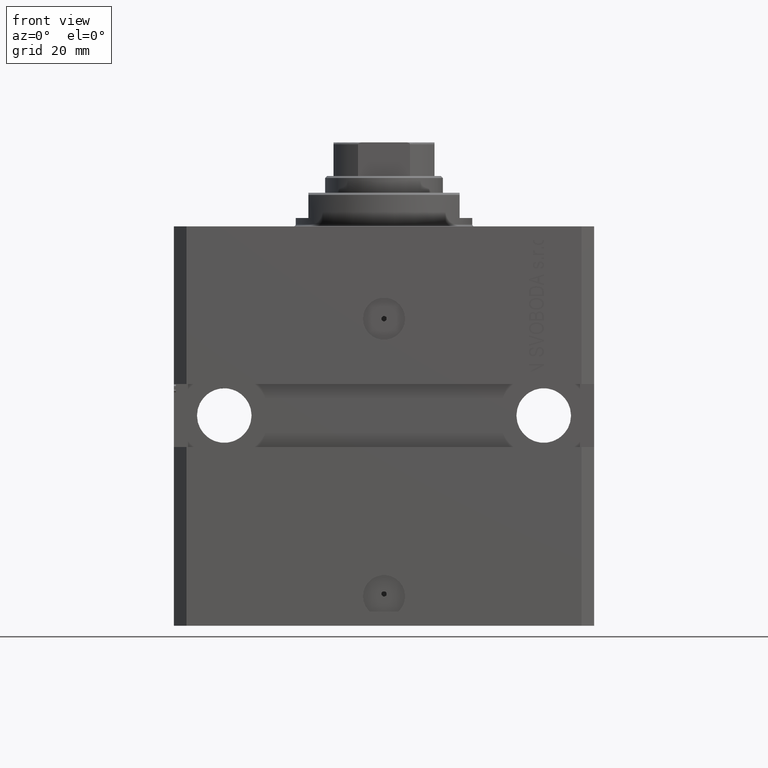
[diagram: clean part render]
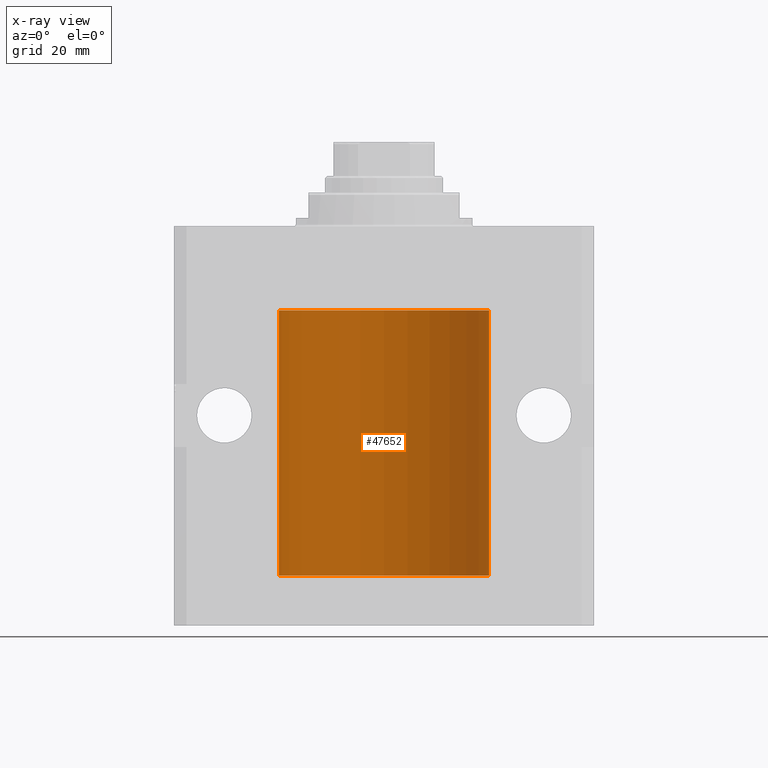
[diagram: x-ray — body ghosted, one internal face saturated and labeled with its STEP entity id]
A machine part, front view, then the same camera in x-ray: the body is ghosted and one INTERNAL B-rep face — a face not visible from any outside direction — is saturated and labeled: STEP entity #47652.
In plain terms, the highlighted cylindrical surface (partial cylindrical patch) has radius 25 mm, axis along (0, 0, 1).
Its self-contained STEP definition (entity closure, byte-faithful):
#1524 = DIRECTION ( 'NONE',  ( 1.000000000000000000, 0.000000000000000000, 0.000000000000000000 ) ) ;
#1706 = CARTESIAN_POINT ( 'NONE',  ( 0.000000000000000000, 0.000000000000000000, -83.09999999999999432 ) ) ;
#1786 = AXIS2_PLACEMENT_3D ( 'NONE', #1706, #16415, #27290 ) ;
#2389 = CARTESIAN_POINT ( 'NONE',  ( 25.00000000000000000, 0.000000000000000000, -83.09999999999999432 ) ) ;
#2502 = VERTEX_POINT ( 'NONE', #42240 ) ;
#2603 = CARTESIAN_POINT ( 'NONE',  ( 25.00000000000000000, 5.649527105131028858E-17, -25.62500000000000355 ) ) ;
#4727 = CARTESIAN_POINT ( 'NONE',  ( 24.99218627891524136, 0.6250000000003219647, -80.66310615504829684 ) ) ;
#4922 = VERTEX_POINT ( 'NONE', #41672 ) ;
#5221 = CARTESIAN_POINT ( 'NONE',  ( 24.99999999999999645, 0.1631302137355183646, -24.37500000000015277 ) ) ;
#5328 = VERTEX_POINT ( 'NONE', #26222 ) ;
#5475 = AXIS2_PLACEMENT_3D ( 'NONE', #46363, #8991, #1524 ) ;
#5698 = CARTESIAN_POINT ( 'NONE',  ( 24.99218627891505307, 0.6250000000082325258, -24.99999999999907629 ) ) ;
#5888 = VECTOR ( 'NONE', #6752, 1000.000000000000000 ) ;
#6544 = LINE ( 'NONE', #29223, #37140 ) ;
#6752 = DIRECTION ( 'NONE',  ( -0.000000000000000000, -0.000000000000000000, 1.000000000000000000 ) ) ;
#7108 = DIRECTION ( 'NONE',  ( 0.000000000000000000, 0.000000000000000000, 1.000000000000000000 ) ) ;
#7466 = EDGE_LOOP ( 'NONE', ( #31501, #17187, #27698, #42419, #34629, #42124, #22912, #26150, #10611, #18816 ) ) ;
#8051 = CARTESIAN_POINT ( 'NONE',  ( 25.00000000000008171, 3.486950283966777142E-13, -24.37499999999673150 ) ) ;
#8211 = CARTESIAN_POINT ( 'NONE',  ( 25.00000000000000000, 5.649527105131028858E-17, -25.62500000000000355 ) ) ;
#8337 = CARTESIAN_POINT ( 'NONE',  ( 25.00000000000000000, -2.424731304940744339E-15, -81.12500000000000000 ) ) ;
#8991 = DIRECTION ( 'NONE',  ( 0.000000000000000000, 0.000000000000000000, 1.000000000000000000 ) ) ;
#9300 = CARTESIAN_POINT ( 'NONE',  ( 24.99815573945175373, 0.3253059702579641499, -24.44140848432692081 ) ) ;
#10524 = VERTEX_POINT ( 'NONE', #8051 ) ;
#10611 = ORIENTED_EDGE ( 'NONE', *, *, #45346, .T. ) ;
#10650 = B_SPLINE_CURVE_WITH_KNOTS ( 'NONE', 3,
 ( #2603, #32508, #24786, #17312, #43103, #43581, #46241, #39727 ),
 .UNSPECIFIED., .F., .F.,
 ( 4, 2, 2, 4 ),
 ( 5.490258492927436848E-20, 0.0002443193446654762300, 0.0004886386893309524601, 0.0009772773786619120759 ),
 .UNSPECIFIED. ) ;
#10841 = LINE ( 'NONE', #39794, #5888 ) ;
#10983 = B_SPLINE_CURVE_WITH_KNOTS ( 'NONE', 3,
 ( #8337, #26922, #27806, #19440, #35046, #33914, #4727, #45000 ),
 .UNSPECIFIED., .F., .F.,
 ( 4, 2, 2, 4 ),
 ( 2.356374505740030593E-18, 0.0002443193446654823016, 0.0004886386893309623263, 0.0009772773786619218337 ),
 .UNSPECIFIED. ) ;
#11577 = B_SPLINE_CURVE_WITH_KNOTS ( 'NONE', 3,
 ( #16484, #37970, #41817, #38674, #23498, #45429 ),
 .UNSPECIFIED., .F., .F.,
 ( 4, 2, 4 ),
 ( 0.0009772773786619218337, 0.001465694572771605777, 0.001954111766881289937 ),
 .UNSPECIFIED. ) ;
#11657 = EDGE_CURVE ( 'NONE', #41870, #38704, #16386, .T. ) ;
#12673 = EDGE_CURVE ( 'NONE', #2502, #5328, #11577, .T. ) ;
#13473 = EDGE_CURVE ( 'NONE', #43385, #2502, #10983, .T. ) ;
#16126 = VERTEX_POINT ( 'NONE', #36348 ) ;
#16386 = CIRCLE ( 'NONE', #43342, 25.00000000000000000 ) ;
#16415 = DIRECTION ( 'NONE',  ( -0.000000000000000000, -0.000000000000000000, 1.000000000000000000 ) ) ;
#16484 = CARTESIAN_POINT ( 'NONE',  ( 24.99218627891505307, 0.6250000000082391871, -80.49999999999907629 ) ) ;
#16545 = CARTESIAN_POINT ( 'NONE',  ( 24.99403021173655404, 0.5586305782632567940, -24.67476111441487063 ) ) ;
#17090 = LINE ( 'NONE', #17336, #40486 ) ;
#17187 = ORIENTED_EDGE ( 'NONE', *, *, #39382, .F. ) ;
#17282 = EDGE_CURVE ( 'NONE', #16126, #38704, #17090, .T. ) ;
#17312 = CARTESIAN_POINT ( 'NONE',  ( 24.99812887437769859, 0.3150953964768999360, -25.54594609348567502 ) ) ;
#17336 = CARTESIAN_POINT ( 'NONE',  ( -25.00000000000000000, 3.061616997868383043E-15, -83.09999999999999432 ) ) ;
#18235 = VERTEX_POINT ( 'NONE', #8211 ) ;
#18816 = ORIENTED_EDGE ( 'NONE', *, *, #11657, .T. ) ;
#19440 = CARTESIAN_POINT ( 'NONE',  ( 24.99812887437770570, 0.3150953964769092064, -81.04594609348566792 ) ) ;
#19595 = EDGE_CURVE ( 'NONE', #4922, #43385, #10841, .T. ) ;
#20038 = CYLINDRICAL_SURFACE ( 'NONE', #1786, 25.00000000000000000 ) ;
#22912 = ORIENTED_EDGE ( 'NONE', *, *, #27119, .T. ) ;
#23498 = CARTESIAN_POINT ( 'NONE',  ( 24.99999999999999645, 0.1631302137355208348, -79.87500000000017053 ) ) ;
#23554 = CARTESIAN_POINT ( 'NONE',  ( 25.00000000000008171, 3.486950283966777142E-13, -24.37499999999673150 ) ) ;
#24561 = CARTESIAN_POINT ( 'NONE',  ( 25.00000000000000000, 0.000000000000000000, -20.00000000000000355 ) ) ;
#24786 = CARTESIAN_POINT ( 'NONE',  ( 24.99957883295564187, 0.1636780489658712090, -25.60872961334235498 ) ) ;
#24790 = VECTOR ( 'NONE', #32296, 1000.000000000000000 ) ;
#25008 = CARTESIAN_POINT ( 'NONE',  ( 24.99218627891505307, 0.6250000000082325258, -24.99999999999907629 ) ) ;
#26150 = ORIENTED_EDGE ( 'NONE', *, *, #29072, .T. ) ;
#26222 = CARTESIAN_POINT ( 'NONE',  ( 25.00000000000008171, 3.486950403907965962E-13, -79.87499999999673150 ) ) ;
#26276 = CIRCLE ( 'NONE', #5475, 25.00000000000000000 ) ;
#26922 = CARTESIAN_POINT ( 'NONE',  ( 25.00000000000000355, 0.08261259269783381709, -81.12500000000001421 ) ) ;
#27119 = EDGE_CURVE ( 'NONE', #18235, #44617, #10650, .T. ) ;
#27290 = DIRECTION ( 'NONE',  ( 1.000000000000000000, 0.000000000000000000, 0.000000000000000000 ) ) ;
#27698 = ORIENTED_EDGE ( 'NONE', *, *, #19595, .T. ) ;
#27806 = CARTESIAN_POINT ( 'NONE',  ( 24.99957883295564187, 0.1636780489658792026, -81.10872961334236209 ) ) ;
#29072 = EDGE_CURVE ( 'NONE', #44617, #10524, #32958, .T. ) ;
#29223 = CARTESIAN_POINT ( 'NONE',  ( 25.00000000000000000, 0.000000000000000000, -83.09999999999999432 ) ) ;
#30002 = DIRECTION ( 'NONE',  ( 1.000000000000000000, 0.000000000000000000, 0.000000000000000000 ) ) ;
#31501 = ORIENTED_EDGE ( 'NONE', *, *, #17282, .F. ) ;
#31606 = CARTESIAN_POINT ( 'NONE',  ( 25.00000000000000000, -2.424731304940744339E-15, -81.12500000000000000 ) ) ;
#31818 = DIRECTION ( 'NONE',  ( -0.000000000000000000, -0.000000000000000000, 1.000000000000000000 ) ) ;
#32296 = DIRECTION ( 'NONE',  ( -0.000000000000000000, -0.000000000000000000, 1.000000000000000000 ) ) ;
#32508 = CARTESIAN_POINT ( 'NONE',  ( 25.00000000000000355, 0.08261259269783348402, -25.62500000000000000 ) ) ;
#32958 = B_SPLINE_CURVE_WITH_KNOTS ( 'NONE', 3,
 ( #5698, #42342, #16545, #9300, #5221, #23554 ),
 .UNSPECIFIED., .F., .F.,
 ( 4, 2, 4 ),
 ( 0.0009772773786619120759, 0.001465694572771597754, 0.001954111766881283432 ),
 .UNSPECIFIED. ) ;
#33914 = CARTESIAN_POINT ( 'NONE',  ( 24.99405112861447265, 0.5574133879603476727, -80.82638777868982061 ) ) ;
#34451 = CARTESIAN_POINT ( 'NONE',  ( -25.00000000000000000, 3.061616997868383043E-15, -20.00000000000000355 ) ) ;
#34521 = FACE_OUTER_BOUND ( 'NONE', #7466, .T. ) ;
#34629 = ORIENTED_EDGE ( 'NONE', *, *, #12673, .T. ) ;
#35046 = CARTESIAN_POINT ( 'NONE',  ( 24.99711042419772511, 0.3844422150124162108, -80.99948233212519710 ) ) ;
#36348 = CARTESIAN_POINT ( 'NONE',  ( -25.00000000000000000, 3.061616997868383043E-15, -83.09999999999999432 ) ) ;
#36756 = CARTESIAN_POINT ( 'NONE',  ( 0.000000000000000000, 0.000000000000000000, -20.00000000000000355 ) ) ;
#37140 = VECTOR ( 'NONE', #39591, 1000.000000000000000 ) ;
#37970 = CARTESIAN_POINT ( 'NONE',  ( 24.99218627891526268, 0.6249999999996124211, -80.33696777940136258 ) ) ;
#38674 = CARTESIAN_POINT ( 'NONE',  ( 24.99815573945175373, 0.3253059702579679247, -79.94140848432689950 ) ) ;
#38704 = VERTEX_POINT ( 'NONE', #34451 ) ;
#39382 = EDGE_CURVE ( 'NONE', #4922, #16126, #26276, .T. ) ;
#39591 = DIRECTION ( 'NONE',  ( -0.000000000000000000, -0.000000000000000000, 1.000000000000000000 ) ) ;
#39727 = CARTESIAN_POINT ( 'NONE',  ( 24.99218627891505307, 0.6250000000082325258, -24.99999999999907629 ) ) ;
#39794 = CARTESIAN_POINT ( 'NONE',  ( 25.00000000000000000, 0.000000000000000000, -83.09999999999999432 ) ) ;
#40486 = VECTOR ( 'NONE', #31818, 1000.000000000000000 ) ;
#41672 = CARTESIAN_POINT ( 'NONE',  ( 25.00000000000000000, 0.000000000000000000, -83.09999999999999432 ) ) ;
#41817 = CARTESIAN_POINT ( 'NONE',  ( 24.99403021173655404, 0.5586305782632625672, -80.17476111441484932 ) ) ;
#41870 = VERTEX_POINT ( 'NONE', #24561 ) ;
#42124 = ORIENTED_EDGE ( 'NONE', *, *, #44186, .T. ) ;
#42240 = CARTESIAN_POINT ( 'NONE',  ( 24.99218627891505307, 0.6250000000082391871, -80.49999999999907629 ) ) ;
#42342 = CARTESIAN_POINT ( 'NONE',  ( 24.99218627891526268, 0.6249999999996038724, -24.83696777940135192 ) ) ;
#42419 = ORIENTED_EDGE ( 'NONE', *, *, #13473, .T. ) ;
#43103 = CARTESIAN_POINT ( 'NONE',  ( 24.99711042419772866, 0.3844422150124099380, -25.49948233212518645 ) ) ;
#43132 = LINE ( 'NONE', #2389, #24790 ) ;
#43342 = AXIS2_PLACEMENT_3D ( 'NONE', #36756, #7108, #30002 ) ;
#43385 = VERTEX_POINT ( 'NONE', #31606 ) ;
#43581 = CARTESIAN_POINT ( 'NONE',  ( 24.99405112861447265, 0.5574133879603401232, -25.32638777868982061 ) ) ;
#44186 = EDGE_CURVE ( 'NONE', #5328, #18235, #43132, .T. ) ;
#44617 = VERTEX_POINT ( 'NONE', #25008 ) ;
#45000 = CARTESIAN_POINT ( 'NONE',  ( 24.99218627891505307, 0.6250000000082391871, -80.49999999999907629 ) ) ;
#45346 = EDGE_CURVE ( 'NONE', #10524, #41870, #6544, .T. ) ;
#45429 = CARTESIAN_POINT ( 'NONE',  ( 25.00000000000008171, 3.486950403907965962E-13, -79.87499999999673150 ) ) ;
#46241 = CARTESIAN_POINT ( 'NONE',  ( 24.99218627891524491, 0.6250000000003173017, -25.16310615504827908 ) ) ;
#46363 = CARTESIAN_POINT ( 'NONE',  ( 0.000000000000000000, 0.000000000000000000, -83.09999999999999432 ) ) ;
#47652 = ADVANCED_FACE ( 'NONE', ( #34521 ), #20038, .F. ) ;